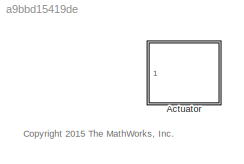
MODEL slx_a9bbd15419de
KIND model
CONFIG AbsTol = 1e-3
CONFIG FixedStep = auto
CONFIG MaxStep = auto
CONFIG MinStep = auto
CONFIG RelTol = 1e-3
CONFIG SampleTimeConstraint = Unconstrained
CONFIG Solver = ode23t
CONFIG SolverMode = Auto
CONFIG SolverName = ode23t
CONFIG StartTime = 0.0
CONFIG StopTime = 10
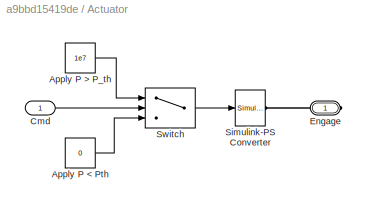
BLOCK [SubSystem] Actuator
  Ports = [1, 0, 0, 0, 0, 0, 1]
  RequestExecContextInheritance = off
BLOCK [Constant] Actuator/Apply P < Pth
  Value = 0
BLOCK [Constant] Actuator/Apply P > P_th
  Value = 1e7
BLOCK [Inport] Actuator/Cmd
  IconDisplay = Port number
BLOCK [PMIOPort] Actuator/Engage
  Port = 1
  Side = Right
BLOCK [Reference] Actuator/Simulink-PS Converter  REF=nesl_utility/Simulink-PS
Converter
  AffineConversion = off
  Frequencies = []
  InputFilterTimeConstant = 0.001
  InputFiltering = off
  LeftPortType = input
  NoiseDistribution = none
  NoiseParameters = []
  PhysicalDomain = network_engine_domain
  Ports = [1, 0, 0, 0, 0, 0, 1]
  PseudoPeriodic = off
  RightPortType = output
  SimscapeFilterOrder = 1
  SourceBlock = nesl_utility/Simulink-PS\nConverter
  SourceType = Simulink-PS\nConverter
  SubClassName = ps_input
  UdotUserProvided = 1
  Unit = 1
BLOCK [Switch] Actuator/Switch
  Criteria = u2 > Threshold
  InputSameDT = off
  SaturateOnIntegerOverflow = off
ANNOTATION (root): <copyright redacted>
LINE Actuator/Apply P < Pth:1 -> Actuator/Switch:3
LINE Actuator/Apply P > P_th:1 -> Actuator/Switch:1
LINE Actuator/Cmd:1 -> Actuator/Switch:2
LINE Actuator/Switch:1 -> Actuator/Simulink-PS Converter:1
PLINE Actuator/Engage:RConn1 -- Actuator/Simulink-PS Converter:RConn1
